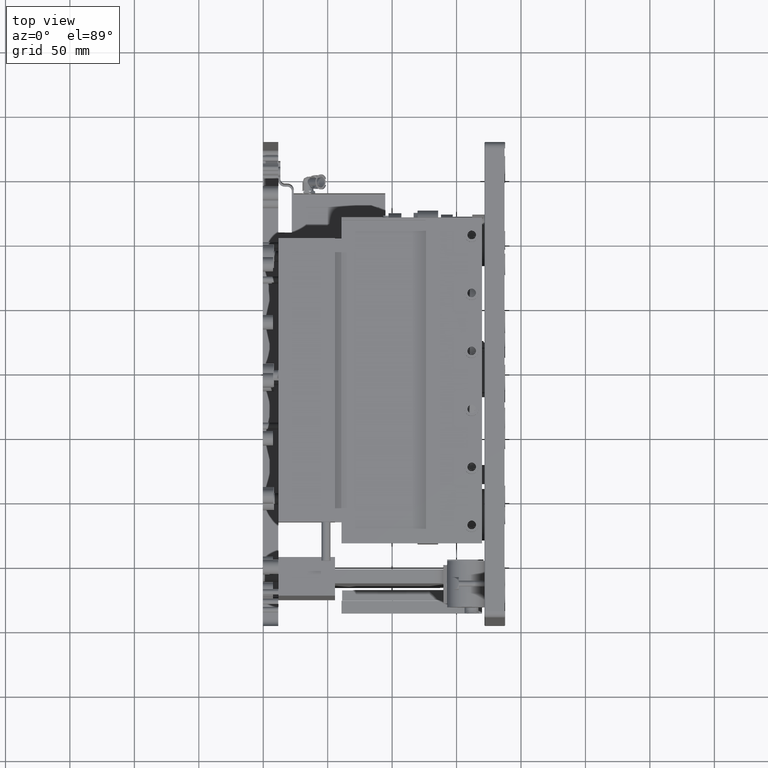
[diagram: clean part render]
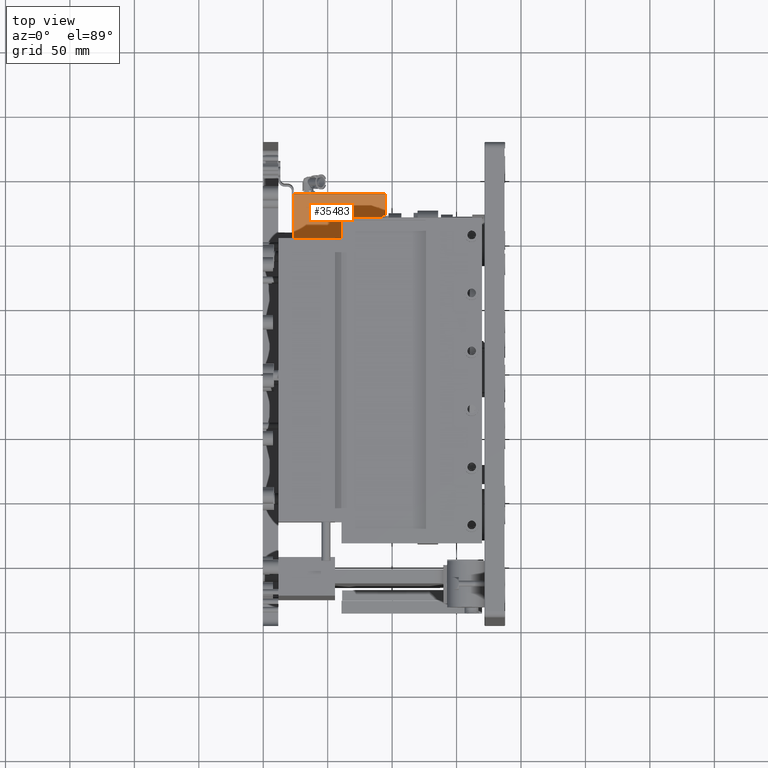
[diagram: same view with one face highlighted and labeled with its STEP entity id]
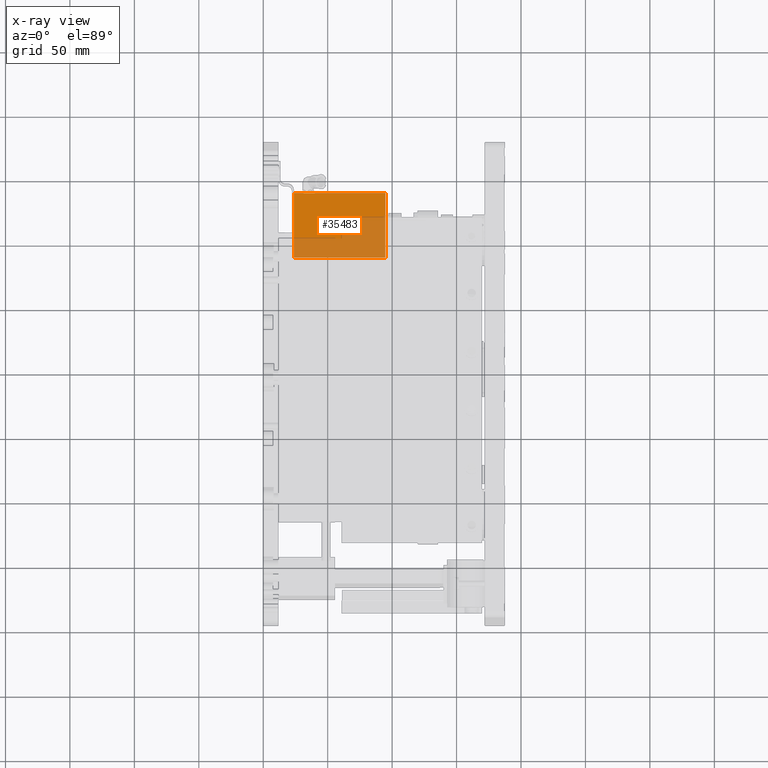
[diagram: x-ray of the same camera — body ghosted, the highlighted face saturated]
A machine part, top view. The second image highlights one B-rep face of the part: STEP entity #35483.
The next image is the same camera in x-ray: the body ghosted, the highlighted face saturated — about 46% of this face is hidden behind the body in this view.
In plain terms, the highlighted planar face has unit normal (-0, -0, -1).
Its self-contained STEP definition (entity closure, byte-faithful):
#1135 = CARTESIAN_POINT ( 'NONE',  ( -105.3092948551350787, 89.01103510650077055, 136.9999999999999432 ) ) ;
#4807 = DIRECTION ( 'NONE',  ( -2.888894916580499623E-32, -1.504367242039507556E-16, -1.000000000000000000 ) ) ;
#5048 = DIRECTION ( 'NONE',  ( 0.000000000000000000, 1.000000000000000000, -1.504367242039507556E-16 ) ) ;
#6239 = DIRECTION ( 'NONE',  ( -9.912705577010012470E-17, 1.000000000000000000, 0.000000000000000000 ) ) ;
#6605 = LINE ( 'NONE', #39554, #12010 ) ;
#6803 = EDGE_CURVE ( 'NONE', #40900, #30300, #6605, .T. ) ;
#7065 = EDGE_CURVE ( 'NONE', #29422, #40900, #27797, .T. ) ;
#7603 = ORIENTED_EDGE ( 'NONE', *, *, #6803, .F. ) ;
#9071 = VECTOR ( 'NONE', #41631, 1000.000000000000000 ) ;
#10565 = ORIENTED_EDGE ( 'NONE', *, *, #15076, .T. ) ;
#10688 = CARTESIAN_POINT ( 'NONE',  ( -176.3092948551350503, 89.01103510650075634, 136.9999999999999432 ) ) ;
#12010 = VECTOR ( 'NONE', #39778, 1000.000000000000000 ) ;
#12462 = AXIS2_PLACEMENT_3D ( 'NONE', #33141, #4807, #5048 ) ;
#12821 = CARTESIAN_POINT ( 'NONE',  ( -176.3092948551350503, 146.5110351065007706, 136.9999999999999432 ) ) ;
#14597 = VERTEX_POINT ( 'NONE', #10688 ) ;
#15076 = EDGE_CURVE ( 'NONE', #14597, #30300, #38091, .T. ) ;
#23928 = CARTESIAN_POINT ( 'NONE',  ( -105.3092948551350787, 89.01103510650077055, 136.9999999999999432 ) ) ;
#25885 = FACE_OUTER_BOUND ( 'NONE', #37025, .T. ) ;
#27797 = LINE ( 'NONE', #34612, #9071 ) ;
#28713 = ORIENTED_EDGE ( 'NONE', *, *, #7065, .F. ) ;
#29422 = VERTEX_POINT ( 'NONE', #23928 ) ;
#29898 = CARTESIAN_POINT ( 'NONE',  ( -176.3092948551350503, 139.0110351065007990, 136.9999999999999432 ) ) ;
#30300 = VERTEX_POINT ( 'NONE', #29898 ) ;
#33141 = CARTESIAN_POINT ( 'NONE',  ( -105.3092948551350787, 139.0110351065007990, 136.9999999999999432 ) ) ;
#33841 = PLANE ( 'NONE',  #12462 ) ;
#34612 = CARTESIAN_POINT ( 'NONE',  ( -105.3092948551350787, 114.0110351065007563, 136.9999999999999432 ) ) ;
#35483 = ADVANCED_FACE ( 'NONE', ( #25885 ), #33841, .T. ) ;
#36943 = DIRECTION ( 'NONE',  ( 1.000000000000000000, 9.912705577009975492E-17, -1.491234955003614274E-32 ) ) ;
#37025 = EDGE_LOOP ( 'NONE', ( #39133, #10565, #7603, #28713 ) ) ;
#38091 = LINE ( 'NONE', #12821, #44494 ) ;
#38215 = VECTOR ( 'NONE', #36943, 1000.000000000000000 ) ;
#39133 = ORIENTED_EDGE ( 'NONE', *, *, #42845, .F. ) ;
#39554 = CARTESIAN_POINT ( 'NONE',  ( -105.3092948551350787, 139.0110351065007990, 136.9999999999999432 ) ) ;
#39762 = CARTESIAN_POINT ( 'NONE',  ( -105.3092948551350787, 139.0110351065007990, 136.9999999999999432 ) ) ;
#39778 = DIRECTION ( 'NONE',  ( -1.000000000000000000, -9.912705577009975492E-17, 1.491234955003614274E-32 ) ) ;
#40900 = VERTEX_POINT ( 'NONE', #39762 ) ;
#41631 = DIRECTION ( 'NONE',  ( -9.912705577010012470E-17, 1.000000000000000000, -0.000000000000000000 ) ) ;
#42845 = EDGE_CURVE ( 'NONE', #14597, #29422, #43971, .T. ) ;
#43971 = LINE ( 'NONE', #1135, #38215 ) ;
#44494 = VECTOR ( 'NONE', #6239, 1000.000000000000000 ) ;